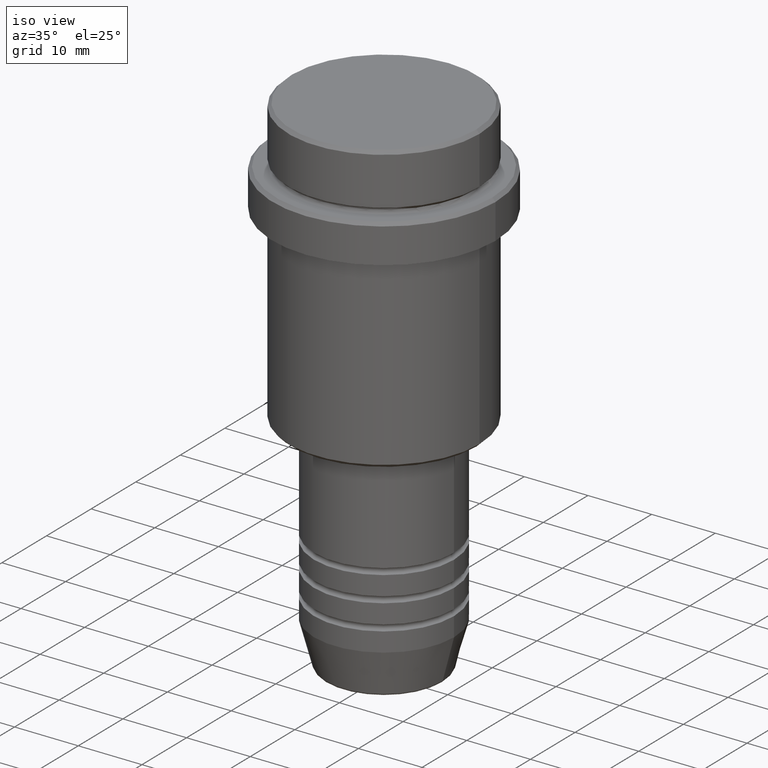
[diagram: clean part render]
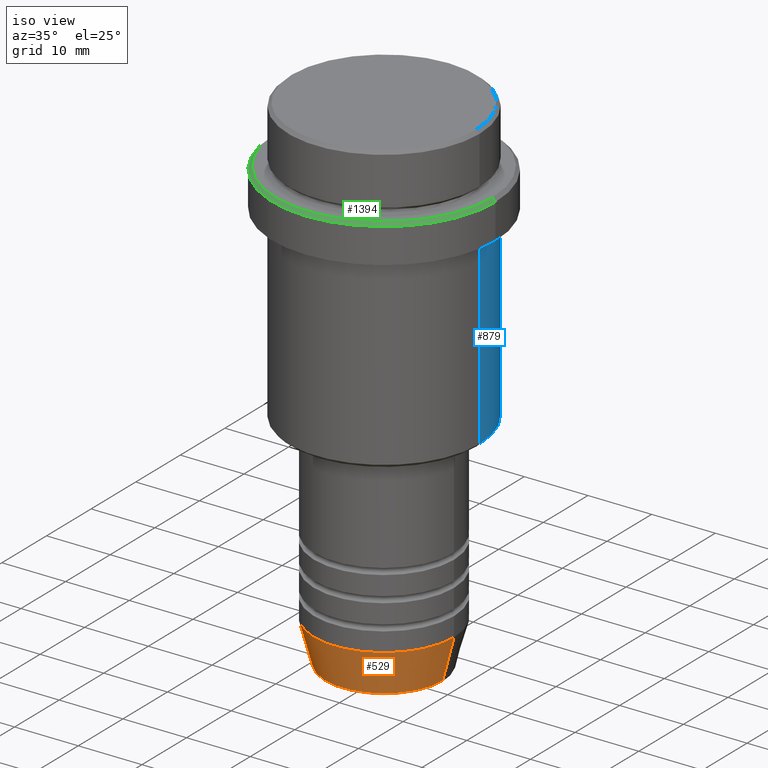
[diagram: same view with three faces highlighted in distinct colors, each labeled with its STEP entity id]
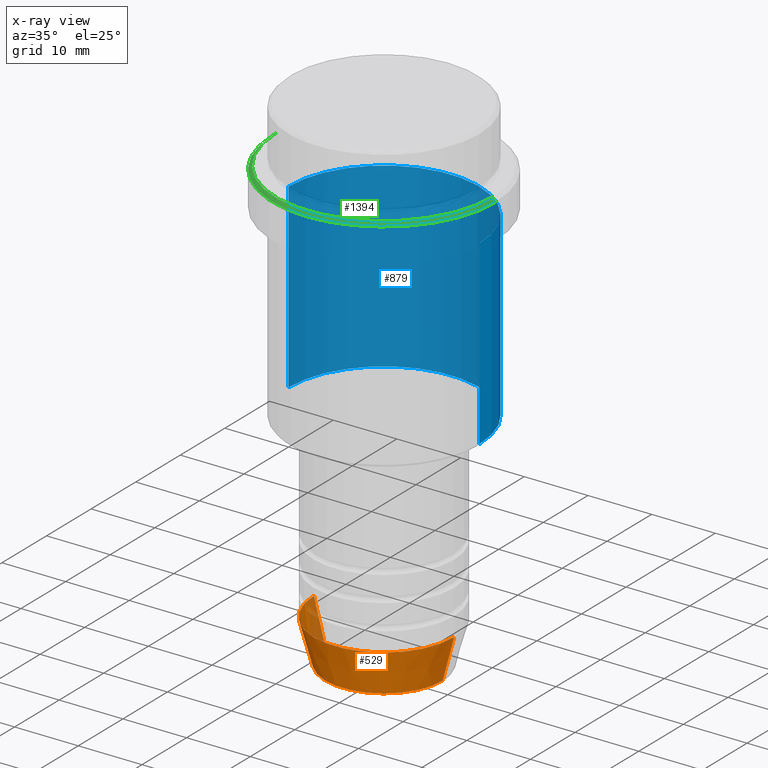
[diagram: x-ray of the same camera — body ghosted, the three highlighted faces saturated]
A machine part, iso view with three faces highlighted in distinct colors.
The next image is the same camera in x-ray (body ghosted, the three faces saturated) — at least one of them is partly hidden behind the body in this view.
Their STEP definitions:

[orange] entity #529 — the highlighted conical surface has half-angle 15 deg.
#58 = CARTESIAN_POINT ( 'NONE',  ( 0.000000000000000000, 0.000000000000000000, -73.00000000000001421 ) ) ;
#66 = VERTEX_POINT ( 'NONE', #268 ) ;
#106 = ORIENTED_EDGE ( 'NONE', *, *, #1013, .T. ) ;
#123 = VERTEX_POINT ( 'NONE', #1261 ) ;
#146 = DIRECTION ( 'NONE',  ( 1.000000000000000000, 0.000000000000000000, 0.000000000000000000 ) ) ;
#193 = EDGE_CURVE ( 'NONE', #123, #66, #498, .T. ) ;
#242 = CARTESIAN_POINT ( 'NONE',  ( 9.223655072137191269, 0.000000000000000000, -79.62940952255125637 ) ) ;
#255 = DIRECTION ( 'NONE',  ( -0.000000000000000000, -0.000000000000000000, 1.000000000000000000 ) ) ;
#268 = CARTESIAN_POINT ( 'NONE',  ( 11.00000000000000000, 0.000000000000000000, -73.00000000000001421 ) ) ;
#276 = DIRECTION ( 'NONE',  ( -0.000000000000000000, -0.000000000000000000, 1.000000000000000000 ) ) ;
#279 = ORIENTED_EDGE ( 'NONE', *, *, #562, .F. ) ;
#307 = DIRECTION ( 'NONE',  ( -0.000000000000000000, -0.000000000000000000, 1.000000000000000000 ) ) ;
#319 = AXIS2_PLACEMENT_3D ( 'NONE', #804, #255, #146 ) ;
#323 = AXIS2_PLACEMENT_3D ( 'NONE', #644, #307, #628 ) ;
#469 = ORIENTED_EDGE ( 'NONE', *, *, #625, .T. ) ;
#498 = CIRCLE ( 'NONE', #319, 11.00000000000000000 ) ;
#529 = ADVANCED_FACE ( 'NONE', ( #828 ), #1096, .T. ) ;
#548 = EDGE_LOOP ( 'NONE', ( #279, #469, #106, #1011 ) ) ;
#562 = EDGE_CURVE ( 'NONE', #1213, #123, #576, .T. ) ;
#576 = LINE ( 'NONE', #932, #1363 ) ;
#598 = LINE ( 'NONE', #1122, #961 ) ;
#599 = DIRECTION ( 'NONE',  ( -0.2588190451025213501, 3.169619151431772337E-17, 0.9659258262890680902 ) ) ;
#625 = EDGE_CURVE ( 'NONE', #1213, #1401, #917, .T. ) ;
#628 = DIRECTION ( 'NONE',  ( 1.000000000000000000, 0.000000000000000000, 0.000000000000000000 ) ) ;
#644 = CARTESIAN_POINT ( 'NONE',  ( 0.000000000000000000, 0.000000000000000000, -79.62940952255125637 ) ) ;
#804 = CARTESIAN_POINT ( 'NONE',  ( 0.000000000000000000, 0.000000000000000000, -73.00000000000001421 ) ) ;
#828 = FACE_OUTER_BOUND ( 'NONE', #548, .T. ) ;
#917 = CIRCLE ( 'NONE', #323, 9.223655072137191269 ) ;
#932 = CARTESIAN_POINT ( 'NONE',  ( -11.00000000000000000, 1.347111479062088405E-15, -73.00000000000001421 ) ) ;
#961 = VECTOR ( 'NONE', #1015, 1000.000000000000000 ) ;
#1011 = ORIENTED_EDGE ( 'NONE', *, *, #193, .F. ) ;
#1013 = EDGE_CURVE ( 'NONE', #1401, #66, #598, .T. ) ;
#1015 = DIRECTION ( 'NONE',  ( 0.2588190451025213501, 0.000000000000000000, 0.9659258262890680902 ) ) ;
#1096 = CONICAL_SURFACE ( 'NONE', #1276, 11.00000000000000000, 0.2617993877991500740 ) ;
#1122 = CARTESIAN_POINT ( 'NONE',  ( 11.00000000000000000, 0.000000000000000000, -73.00000000000001421 ) ) ;
#1198 = CARTESIAN_POINT ( 'NONE',  ( -9.223655072137191269, 1.238341722557647202E-15, -79.62940952255125637 ) ) ;
#1213 = VERTEX_POINT ( 'NONE', #1198 ) ;
#1261 = CARTESIAN_POINT ( 'NONE',  ( -11.00000000000000000, 1.347111479062088405E-15, -73.00000000000001421 ) ) ;
#1276 = AXIS2_PLACEMENT_3D ( 'NONE', #58, #276, #1346 ) ;
#1346 = DIRECTION ( 'NONE',  ( 1.000000000000000000, 0.000000000000000000, 0.000000000000000000 ) ) ;
#1363 = VECTOR ( 'NONE', #599, 1000.000000000000000 ) ;
#1401 = VERTEX_POINT ( 'NONE', #242 ) ;

[blue] entity #879 — the highlighted cylindrical surface (partial cylindrical patch) has radius 15 mm, axis along (-0, -0, 1).
#65 = VECTOR ( 'NONE', #1260, 1000.000000000000000 ) ;
#71 = VERTEX_POINT ( 'NONE', #161 ) ;
#107 = LINE ( 'NONE', #1304, #1255 ) ;
#161 = CARTESIAN_POINT ( 'NONE',  ( 15.00000000000000000, 0.000000000000000000, -44.49999999999998579 ) ) ;
#232 = EDGE_CURVE ( 'NONE', #71, #759, #520, .T. ) ;
#302 = DIRECTION ( 'NONE',  ( -1.000000000000000000, 0.000000000000000000, 0.000000000000000000 ) ) ;
#322 = CARTESIAN_POINT ( 'NONE',  ( -15.00000000000000000, 1.836970198721029589E-15, -44.49999999999998579 ) ) ;
#325 = DIRECTION ( 'NONE',  ( -0.000000000000000000, -0.000000000000000000, 1.000000000000000000 ) ) ;
#342 = CIRCLE ( 'NONE', #1023, 15.00000000000000178 ) ;
#392 = VERTEX_POINT ( 'NONE', #873 ) ;
#417 = CARTESIAN_POINT ( 'NONE',  ( 0.000000000000000000, 0.000000000000000000, -44.49999999999998579 ) ) ;
#449 = FACE_OUTER_BOUND ( 'NONE', #988, .T. ) ;
#454 = AXIS2_PLACEMENT_3D ( 'NONE', #568, #657, #650 ) ;
#520 = CIRCLE ( 'NONE', #1249, 15.00000000000000000 ) ;
#555 = EDGE_CURVE ( 'NONE', #759, #1208, #1142, .T. ) ;
#568 = CARTESIAN_POINT ( 'NONE',  ( 0.000000000000000000, 0.000000000000000000, 0.000000000000000000 ) ) ;
#650 = DIRECTION ( 'NONE',  ( 1.000000000000000000, 0.000000000000000000, 0.000000000000000000 ) ) ;
#657 = DIRECTION ( 'NONE',  ( -0.000000000000000000, -0.000000000000000000, 1.000000000000000000 ) ) ;
#759 = VERTEX_POINT ( 'NONE', #322 ) ;
#766 = DIRECTION ( 'NONE',  ( -0.000000000000000000, -0.000000000000000000, 1.000000000000000000 ) ) ;
#802 = CARTESIAN_POINT ( 'NONE',  ( -15.00000000000000000, 1.836970198721029589E-15, 0.000000000000000000 ) ) ;
#824 = ORIENTED_EDGE ( 'NONE', *, *, #232, .T. ) ;
#825 = CARTESIAN_POINT ( 'NONE',  ( -15.00000000000000355, 1.836970198721029983E-15, -16.00000000000000000 ) ) ;
#868 = DIRECTION ( 'NONE',  ( -0.000000000000000000, -0.000000000000000000, 1.000000000000000000 ) ) ;
#873 = CARTESIAN_POINT ( 'NONE',  ( 15.00000000000000178, 0.000000000000000000, -16.00000000000000000 ) ) ;
#879 = ADVANCED_FACE ( 'NONE', ( #449 ), #894, .T. ) ;
#888 = EDGE_CURVE ( 'NONE', #71, #392, #107, .T. ) ;
#894 = CYLINDRICAL_SURFACE ( 'NONE', #454, 15.00000000000000000 ) ;
#988 = EDGE_LOOP ( 'NONE', ( #824, #1029, #1199, #1258 ) ) ;
#1023 = AXIS2_PLACEMENT_3D ( 'NONE', #1406, #868, #1302 ) ;
#1029 = ORIENTED_EDGE ( 'NONE', *, *, #555, .T. ) ;
#1142 = LINE ( 'NONE', #802, #65 ) ;
#1199 = ORIENTED_EDGE ( 'NONE', *, *, #1374, .F. ) ;
#1208 = VERTEX_POINT ( 'NONE', #825 ) ;
#1249 = AXIS2_PLACEMENT_3D ( 'NONE', #417, #325, #302 ) ;
#1255 = VECTOR ( 'NONE', #766, 1000.000000000000000 ) ;
#1258 = ORIENTED_EDGE ( 'NONE', *, *, #888, .F. ) ;
#1260 = DIRECTION ( 'NONE',  ( -0.000000000000000000, -0.000000000000000000, 1.000000000000000000 ) ) ;
#1302 = DIRECTION ( 'NONE',  ( 1.000000000000000000, 0.000000000000000000, 0.000000000000000000 ) ) ;
#1304 = CARTESIAN_POINT ( 'NONE',  ( 15.00000000000000000, 0.000000000000000000, 0.000000000000000000 ) ) ;
#1374 = EDGE_CURVE ( 'NONE', #392, #1208, #342, .T. ) ;
#1406 = CARTESIAN_POINT ( 'NONE',  ( 0.000000000000000000, 0.000000000000000000, -16.00000000000000000 ) ) ;

[green] entity #1394 — the highlighted conical surface has half-angle 45 deg.
#21 = FACE_OUTER_BOUND ( 'NONE', #521, .T. ) ;
#81 = EDGE_CURVE ( 'NONE', #478, #1110, #173, .T. ) ;
#101 = DIRECTION ( 'NONE',  ( -0.7071067811865474617, 0.000000000000000000, -0.7071067811865474617 ) ) ;
#138 = CARTESIAN_POINT ( 'NONE',  ( 0.000000000000000000, 0.000000000000000000, -9.000000000000000000 ) ) ;
#173 = CIRCLE ( 'NONE', #1094, 17.00000000000001421 ) ;
#189 = DIRECTION ( 'NONE',  ( 0.7071067811865474617, 8.659560562354932858E-17, -0.7071067811865474617 ) ) ;
#239 = EDGE_CURVE ( 'NONE', #1110, #871, #975, .T. ) ;
#341 = CARTESIAN_POINT ( 'NONE',  ( 17.50000000000000000, 0.000000000000000000, -9.499999999999985789 ) ) ;
#400 = CARTESIAN_POINT ( 'NONE',  ( 17.00000000000001421, 2.112515728529185250E-15, -9.000000000000000000 ) ) ;
#457 = DIRECTION ( 'NONE',  ( -1.000000000000000000, 0.000000000000000000, 0.000000000000000000 ) ) ;
#478 = VERTEX_POINT ( 'NONE', #813 ) ;
#504 = LINE ( 'NONE', #1290, #524 ) ;
#521 = EDGE_LOOP ( 'NONE', ( #733, #893, #771, #1231 ) ) ;
#524 = VECTOR ( 'NONE', #101, 1000.000000000000114 ) ;
#623 = CARTESIAN_POINT ( 'NONE',  ( 17.00000000000001421, 2.081899558550502252E-15, -9.000000000000000000 ) ) ;
#695 = DIRECTION ( 'NONE',  ( -0.000000000000000000, -0.000000000000000000, 1.000000000000000000 ) ) ;
#705 = AXIS2_PLACEMENT_3D ( 'NONE', #832, #1282, #948 ) ;
#733 = ORIENTED_EDGE ( 'NONE', *, *, #239, .F. ) ;
#749 = EDGE_CURVE ( 'NONE', #478, #1252, #504, .T. ) ;
#771 = ORIENTED_EDGE ( 'NONE', *, *, #749, .T. ) ;
#813 = CARTESIAN_POINT ( 'NONE',  ( -17.00000000000001421, 0.000000000000000000, -9.000000000000000000 ) ) ;
#832 = CARTESIAN_POINT ( 'NONE',  ( 0.000000000000000000, 0.000000000000000000, -9.499999999999985789 ) ) ;
#871 = VERTEX_POINT ( 'NONE', #341 ) ;
#893 = ORIENTED_EDGE ( 'NONE', *, *, #81, .F. ) ;
#936 = CIRCLE ( 'NONE', #705, 17.50000000000000000 ) ;
#948 = DIRECTION ( 'NONE',  ( 1.000000000000000000, 0.000000000000000000, 0.000000000000000000 ) ) ;
#975 = LINE ( 'NONE', #623, #1044 ) ;
#1044 = VECTOR ( 'NONE', #189, 1000.000000000000114 ) ;
#1094 = AXIS2_PLACEMENT_3D ( 'NONE', #1370, #695, #1347 ) ;
#1110 = VERTEX_POINT ( 'NONE', #400 ) ;
#1118 = DIRECTION ( 'NONE',  ( 0.000000000000000000, 0.000000000000000000, -1.000000000000000000 ) ) ;
#1125 = EDGE_CURVE ( 'NONE', #871, #1252, #936, .T. ) ;
#1231 = ORIENTED_EDGE ( 'NONE', *, *, #1125, .F. ) ;
#1250 = AXIS2_PLACEMENT_3D ( 'NONE', #138, #1118, #457 ) ;
#1252 = VERTEX_POINT ( 'NONE', #1323 ) ;
#1282 = DIRECTION ( 'NONE',  ( 0.000000000000000000, 0.000000000000000000, -1.000000000000000000 ) ) ;
#1290 = CARTESIAN_POINT ( 'NONE',  ( -17.00000000000001421, 0.000000000000000000, -9.000000000000000000 ) ) ;
#1323 = CARTESIAN_POINT ( 'NONE',  ( -17.50000000000000000, 2.143131898507868248E-15, -9.499999999999985789 ) ) ;
#1347 = DIRECTION ( 'NONE',  ( 1.000000000000000000, 0.000000000000000000, 0.000000000000000000 ) ) ;
#1361 = CONICAL_SURFACE ( 'NONE', #1250, 17.00000000000001421, 0.7853981633974482790 ) ;
#1370 = CARTESIAN_POINT ( 'NONE',  ( 0.000000000000000000, 0.000000000000000000, -9.000000000000000000 ) ) ;
#1394 = ADVANCED_FACE ( 'NONE', ( #21 ), #1361, .T. ) ;